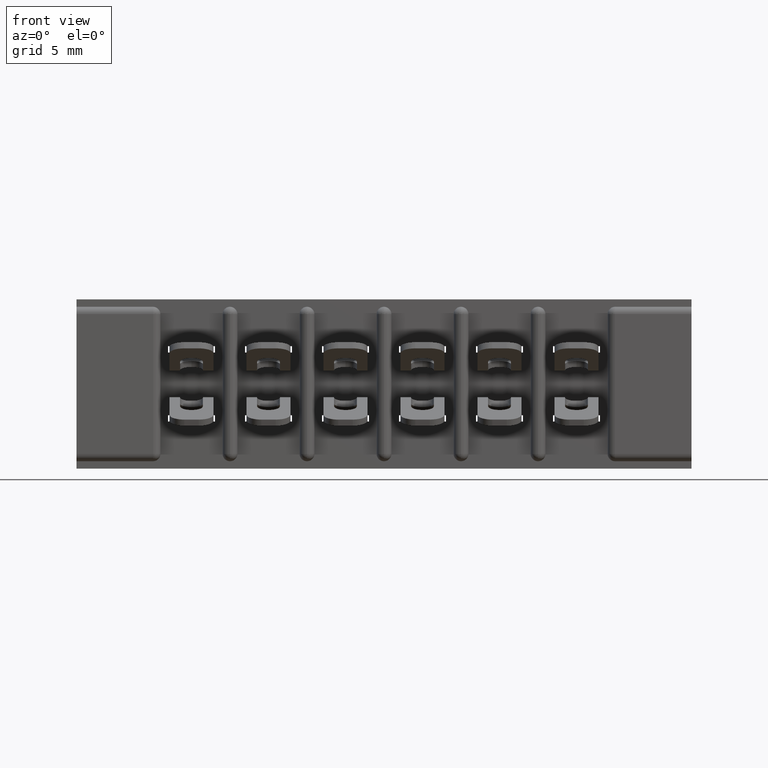
[diagram: clean part render]
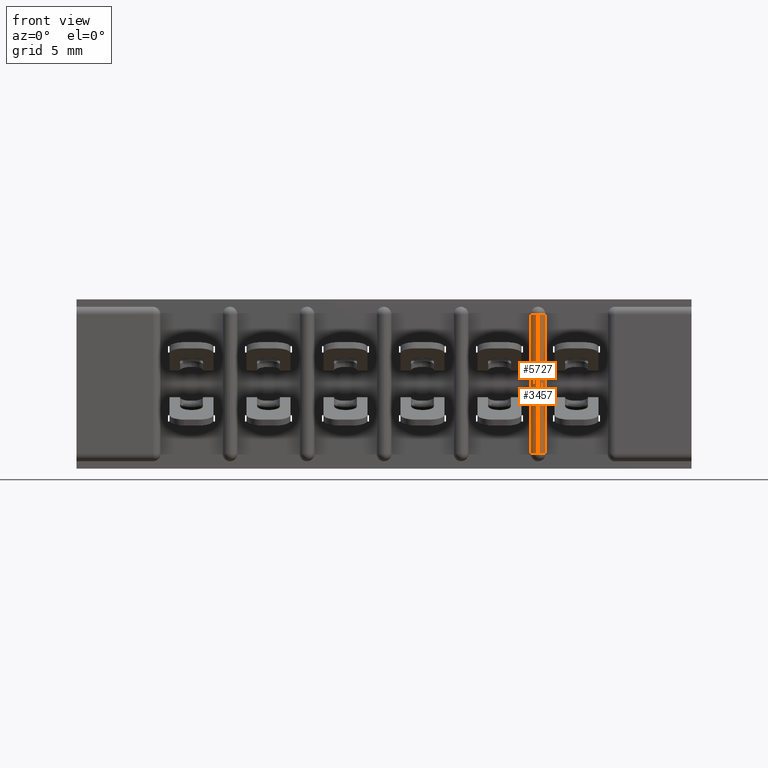
[diagram: same view with one multi-face feature highlighted, each face labeled with its STEP entity id]
A machine part, front view. The highlighted faces form ONE feature: a constant-radius fillet chain: 2 tangent blend faces with common blend radius 0.381 mm. The faces share edges in the B-rep.
Their STEP definitions:
[1] entity #3457 (Cylinder):
#192 = FACE_OUTER_BOUND ( 'NONE', #5906, .T. ) ;
#548 = CARTESIAN_POINT ( 'NONE',  ( 1.232999999999999900, 0.01499999999999999900, -0.3130000000000000600 ) ) ;
#1416 = DIRECTION ( 'NONE',  ( 1.000000000000000000, 0.0000000000000000000, 0.0000000000000000000 ) ) ;
#1666 = CARTESIAN_POINT ( 'NONE',  ( 1.232999999999999900, 0.01499999999999997700, -0.4680000000000006900 ) ) ;
#1977 = DIRECTION ( 'NONE',  ( 1.000000000000000000, 0.0000000000000000000, 0.0000000000000000000 ) ) ;
#2160 = VERTEX_POINT ( 'NONE', #4802 ) ;
#2383 = VERTEX_POINT ( 'NONE', #4129 ) ;
#2863 = DIRECTION ( 'NONE',  ( -0.0000000000000000000, -0.0000000000000000000, -1.000000000000000000 ) ) ;
#2965 = AXIS2_PLACEMENT_3D ( 'NONE', #3896, #10018, #10773 ) ;
#3041 = CYLINDRICAL_SURFACE ( 'NONE', #9521, 0.01499999999999997700 ) ;
#3457 = ADVANCED_FACE ( 'NONE', ( #192 ), #3041, .T. ) ;
#3713 = CARTESIAN_POINT ( 'NONE',  ( 1.233000000000000300, 0.0000000000000000000, -0.3130000000000000600 ) ) ;
#3896 = CARTESIAN_POINT ( 'NONE',  ( 1.232999999999999900, 0.01499999999999999900, -0.02999999999999995400 ) ) ;
#4110 = ORIENTED_EDGE ( 'NONE', *, *, #9682, .F. ) ;
#4129 = CARTESIAN_POINT ( 'NONE',  ( 1.248000000000000000, 0.01499999999999997700, -0.02999999999999995400 ) ) ;
#4186 = VECTOR ( 'NONE', #2863, 39.37007874015748100 ) ;
#4802 = CARTESIAN_POINT ( 'NONE',  ( 1.248000000000000000, 0.01499999999999997700, -0.3130000000000000600 ) ) ;
#5041 = CIRCLE ( 'NONE', #8461, 0.01499999999999997700 ) ;
#5408 = EDGE_CURVE ( 'NONE', #9379, #11001, #7567, .T. ) ;
#5906 = EDGE_LOOP ( 'NONE', ( #9113, #10912, #8916, #4110 ) ) ;
#6120 = EDGE_CURVE ( 'NONE', #9379, #2383, #6362, .T. ) ;
#6362 = CIRCLE ( 'NONE', #2965, 0.01499999999999997700 ) ;
#6663 = DIRECTION ( 'NONE',  ( -0.0000000000000000000, 0.0000000000000000000, 1.000000000000000000 ) ) ;
#7243 = LINE ( 'NONE', #8601, #10717 ) ;
#7567 = LINE ( 'NONE', #3713, #4186 ) ;
#7834 = DIRECTION ( 'NONE',  ( 0.0000000000000000000, 0.0000000000000000000, -1.000000000000000000 ) ) ;
#8170 = CARTESIAN_POINT ( 'NONE',  ( 1.233000000000000300, 0.0000000000000000000, -0.3130000000000000600 ) ) ;
#8461 = AXIS2_PLACEMENT_3D ( 'NONE', #548, #6663, #1416 ) ;
#8601 = CARTESIAN_POINT ( 'NONE',  ( 1.248000000000000000, 0.01499999999999997700, -0.3130000000000000600 ) ) ;
#8916 = ORIENTED_EDGE ( 'NONE', *, *, #10040, .T. ) ;
#9113 = ORIENTED_EDGE ( 'NONE', *, *, #6120, .F. ) ;
#9379 = VERTEX_POINT ( 'NONE', #10910 ) ;
#9521 = AXIS2_PLACEMENT_3D ( 'NONE', #1666, #11182, #1977 ) ;
#9682 = EDGE_CURVE ( 'NONE', #2383, #2160, #7243, .T. ) ;
#10018 = DIRECTION ( 'NONE',  ( 0.0000000000000000000, 0.0000000000000000000, 1.000000000000000000 ) ) ;
#10040 = EDGE_CURVE ( 'NONE', #11001, #2160, #5041, .T. ) ;
#10717 = VECTOR ( 'NONE', #7834, 39.37007874015748100 ) ;
#10773 = DIRECTION ( 'NONE',  ( 1.000000000000000000, 0.0000000000000000000, 0.0000000000000000000 ) ) ;
#10910 = CARTESIAN_POINT ( 'NONE',  ( 1.233000000000000300, 0.0000000000000000000, -0.02999999999999995400 ) ) ;
#10912 = ORIENTED_EDGE ( 'NONE', *, *, #5408, .T. ) ;
#11001 = VERTEX_POINT ( 'NONE', #8170 ) ;
#11182 = DIRECTION ( 'NONE',  ( 0.0000000000000000000, 0.0000000000000000000, 1.000000000000000000 ) ) ;
[2] entity #5727 (Cylinder):
#1216 = VERTEX_POINT ( 'NONE', #1519 ) ;
#1378 = AXIS2_PLACEMENT_3D ( 'NONE', #9082, #10808, #7348 ) ;
#1519 = CARTESIAN_POINT ( 'NONE',  ( 1.218000000000000200, 0.01499999999999997700, -0.02999999999999995400 ) ) ;
#2246 = EDGE_CURVE ( 'NONE', #8172, #1216, #4453, .T. ) ;
#2475 = DIRECTION ( 'NONE',  ( -1.000000000000000000, 0.0000000000000000000, 0.0000000000000000000 ) ) ;
#2739 = ORIENTED_EDGE ( 'NONE', *, *, #3983, .F. ) ;
#2863 = DIRECTION ( 'NONE',  ( -0.0000000000000000000, -0.0000000000000000000, -1.000000000000000000 ) ) ;
#2887 = AXIS2_PLACEMENT_3D ( 'NONE', #8995, #10883, #3913 ) ;
#3382 = CARTESIAN_POINT ( 'NONE',  ( 1.233000000000000300, 0.01499999999999997700, -0.4680000000000006900 ) ) ;
#3713 = CARTESIAN_POINT ( 'NONE',  ( 1.233000000000000300, 0.0000000000000000000, -0.3130000000000000600 ) ) ;
#3913 = DIRECTION ( 'NONE',  ( -1.000000000000000000, 0.0000000000000000000, 0.0000000000000000000 ) ) ;
#3983 = EDGE_CURVE ( 'NONE', #11001, #8172, #6561, .T. ) ;
#4186 = VECTOR ( 'NONE', #2863, 39.37007874015748100 ) ;
#4241 = DIRECTION ( 'NONE',  ( 0.0000000000000000000, 0.0000000000000000000, -1.000000000000000000 ) ) ;
#4453 = LINE ( 'NONE', #6621, #6779 ) ;
#4722 = CYLINDRICAL_SURFACE ( 'NONE', #8216, 0.01499999999999997700 ) ;
#5358 = CARTESIAN_POINT ( 'NONE',  ( 1.218000000000000200, 0.01499999999999997700, -0.3130000000000000600 ) ) ;
#5408 = EDGE_CURVE ( 'NONE', #9379, #11001, #7567, .T. ) ;
#5727 = ADVANCED_FACE ( 'NONE', ( #7041 ), #4722, .T. ) ;
#6095 = EDGE_CURVE ( 'NONE', #9379, #1216, #9592, .T. ) ;
#6561 = CIRCLE ( 'NONE', #2887, 0.01499999999999997700 ) ;
#6621 = CARTESIAN_POINT ( 'NONE',  ( 1.218000000000000200, 0.01499999999999997700, -0.02999999999999995400 ) ) ;
#6751 = EDGE_LOOP ( 'NONE', ( #2739, #9007, #7272, #7166 ) ) ;
#6779 = VECTOR ( 'NONE', #9919, 39.37007874015748100 ) ;
#7041 = FACE_OUTER_BOUND ( 'NONE', #6751, .T. ) ;
#7166 = ORIENTED_EDGE ( 'NONE', *, *, #2246, .F. ) ;
#7272 = ORIENTED_EDGE ( 'NONE', *, *, #6095, .T. ) ;
#7348 = DIRECTION ( 'NONE',  ( -1.000000000000000000, 0.0000000000000000000, 0.0000000000000000000 ) ) ;
#7567 = LINE ( 'NONE', #3713, #4186 ) ;
#8170 = CARTESIAN_POINT ( 'NONE',  ( 1.233000000000000300, 0.0000000000000000000, -0.3130000000000000600 ) ) ;
#8172 = VERTEX_POINT ( 'NONE', #5358 ) ;
#8216 = AXIS2_PLACEMENT_3D ( 'NONE', #3382, #4241, #2475 ) ;
#8995 = CARTESIAN_POINT ( 'NONE',  ( 1.233000000000000300, 0.01499999999999999900, -0.3130000000000000600 ) ) ;
#9007 = ORIENTED_EDGE ( 'NONE', *, *, #5408, .F. ) ;
#9082 = CARTESIAN_POINT ( 'NONE',  ( 1.233000000000000300, 0.01499999999999999900, -0.02999999999999995400 ) ) ;
#9379 = VERTEX_POINT ( 'NONE', #10910 ) ;
#9592 = CIRCLE ( 'NONE', #1378, 0.01499999999999997700 ) ;
#9919 = DIRECTION ( 'NONE',  ( -0.0000000000000000000, 0.0000000000000000000, 1.000000000000000000 ) ) ;
#10808 = DIRECTION ( 'NONE',  ( -0.0000000000000000000, -0.0000000000000000000, -1.000000000000000000 ) ) ;
#10883 = DIRECTION ( 'NONE',  ( 0.0000000000000000000, -0.0000000000000000000, -1.000000000000000000 ) ) ;
#10910 = CARTESIAN_POINT ( 'NONE',  ( 1.233000000000000300, 0.0000000000000000000, -0.02999999999999995400 ) ) ;
#11001 = VERTEX_POINT ( 'NONE', #8170 ) ;